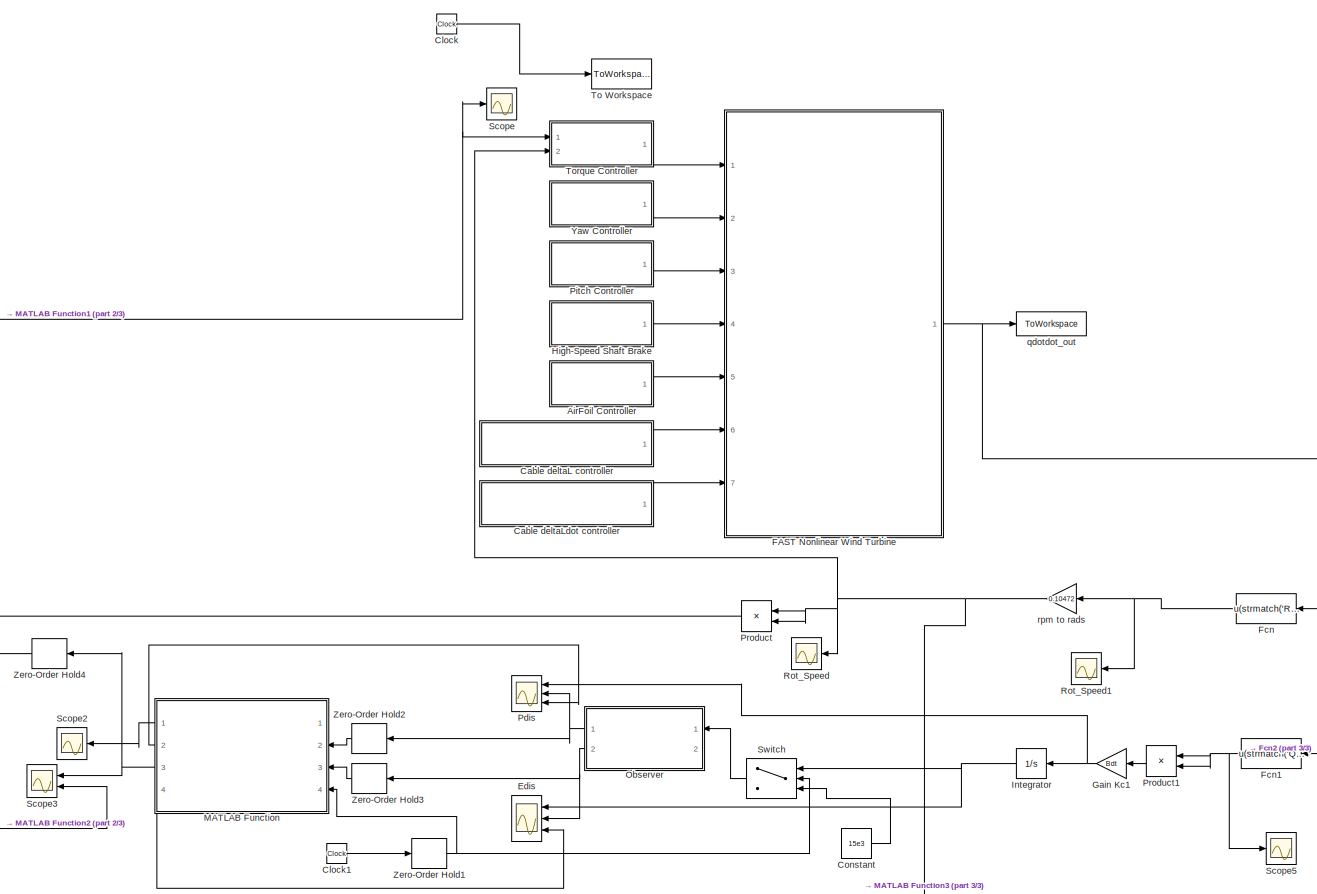
[diagram: root canvas - part 1/3, most of the canvas]
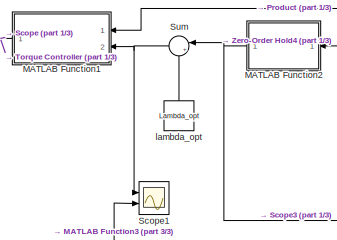
[diagram: root canvas - part 2/3, bottom left region]
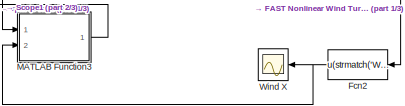
[diagram: root canvas - part 3/3, bottom right region]
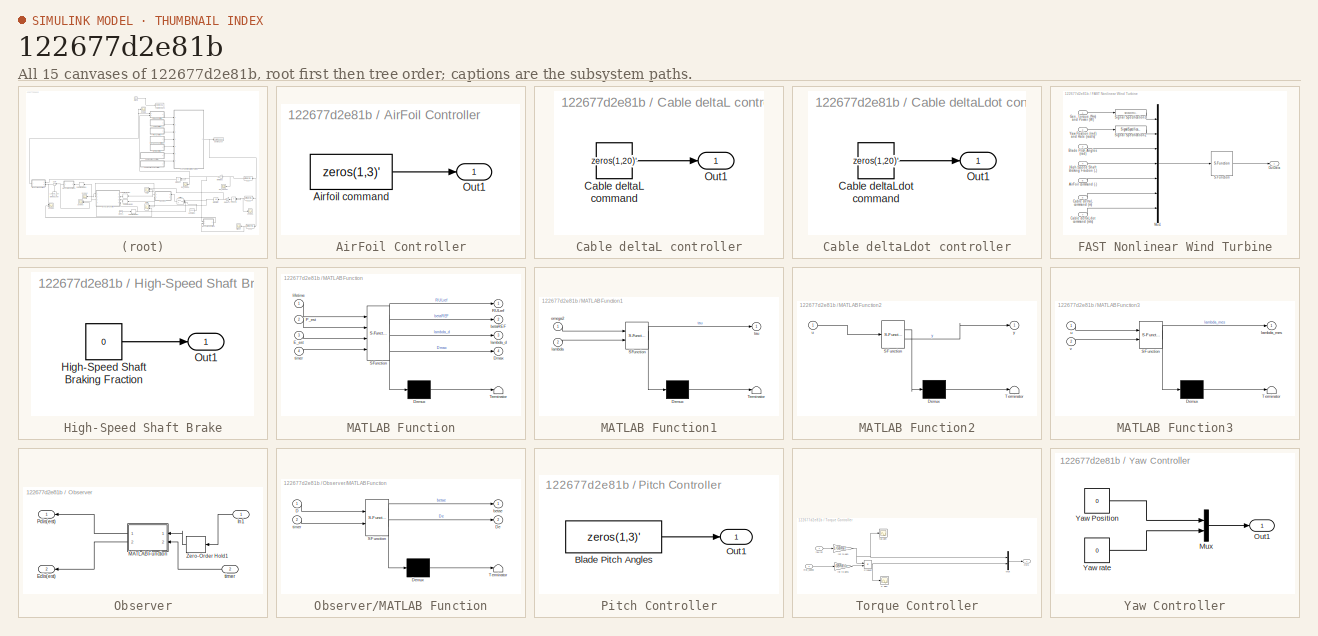
[diagram: thumbnail index - all 15 canvases of the model, root first then tree order]
MODEL slx_122677d2e81b
KIND model
CONFIG AbsTol = auto
CONFIG EnableMultiTasking = on
CONFIG FixedStep = DT
CONFIG MaxStep = DT
CONFIG MinStep = auto
CONFIG RelTol = 1e-3
CONFIG SampleTimeConstraint = Unconstrained
CONFIG SolverName = ode4
CONFIG StartTime = 0.0
CONFIG StopTime = TMax
BLOCK [SubSystem] AirFoil Controller
  Ports = [0, 1]
  RequestExecContextInheritance = off
BLOCK [Constant] AirFoil Controller/Airfoil command
  Value = zeros(1,3)'
BLOCK [Outport] AirFoil Controller/Out1
BLOCK [SubSystem] Cable deltaL controller
  Ports = [0, 1]
  RequestExecContextInheritance = off
BLOCK [Constant] Cable deltaL controller/Cable deltaL command
  Value = zeros(1,20)'
BLOCK [Outport] Cable deltaL controller/Out1
BLOCK [SubSystem] Cable deltaLdot controller
  Ports = [0, 1]
  RequestExecContextInheritance = off
BLOCK [Constant] Cable deltaLdot controller/Cable deltaLdot command
  Value = zeros(1,20)'
BLOCK [Outport] Cable deltaLdot controller/Out1
BLOCK [Clock] Clock
BLOCK [Clock] Clock1
BLOCK [Constant] Constant
  Value = 15e3
BLOCK [Scope] Edis
  Floating = off
  NameLocation = top
  NumInputPorts = 3
  Ports = [3]
  ScopeSpecificationString = Simulink.scopes.TimeScopeBlockCfg('CurrentConfiguration', extmgr.ConfigurationSet(extmgr.Configuration('Core','General UI',true),extmgr.Configuration('Core','Source UI',true),extmgr.Configuration('Sources','WiredSimulink',true,'DataLoggingVariableName','ScopeData2'),extmgr.Configuration('Visuals','Time Domain',true,'SerializedDisplays',{struct('MinYLimReal','15011.5018','MaxYLimReal','15012.31521'...<+1508ch>
BLOCK [SubSystem] FAST Nonlinear Wind Turbine
  Ports = [7, 1]
  RequestExecContextInheritance = off
BLOCK [Inport] FAST Nonlinear Wind Turbine/AirFoil command (-)
  Port = 5
BLOCK [Inport] FAST Nonlinear Wind Turbine/Blade Pitch Angles (rad)
  Port = 3
BLOCK [Inport] FAST Nonlinear Wind Turbine/Cable deltaL command (m)
  Port = 6
BLOCK [Inport] FAST Nonlinear Wind Turbine/Cable deltaLdot command (m//s)
  Port = 7
BLOCK [Inport] FAST Nonlinear Wind Turbine/Gen. Torque (Nm) and Power (W)
BLOCK [Inport] FAST Nonlinear Wind Turbine/High-Speed Shaft Braking Fraction (-)
  Port = 4
BLOCK [Mux] FAST Nonlinear Wind Turbine/Mux1
  DisplayOption = bar
  Inputs = 7
  Ports = [7, 1]
BLOCK [Outport] FAST Nonlinear Wind Turbine/OutData
BLOCK [S-Function] FAST Nonlinear Wind Turbine/S-Function
  EnableBusSupport = off
  FunctionName = FAST_SFunc
  Parameters = FAST_InputFileName, TMax, 0
  Ports = [1, 1]
  SFcnIsStateOwnerBlock = off
  SFunctionDeploymentMode = off
BLOCK [SignalSpecification] FAST Nonlinear Wind Turbine/Signal Specification1
  Dimensions = 2
  OutDataTypeStr = double
  SignalType = real
BLOCK [SignalSpecification] FAST Nonlinear Wind Turbine/Signal Specification2
  Dimensions = 2
  OutDataTypeStr = double
  SignalType = real
BLOCK [Inport] FAST Nonlinear Wind Turbine/Yaw Position (rad) and Rate (rad//s)
  Port = 2
BLOCK [Fcn] Fcn
  Expr = u(strmatch('RotSpeed',OutList))
  NameLocation = top
BLOCK [Fcn] Fcn1
  Expr = u(strmatch('QD_DrTr',OutList))
  NameLocation = top
BLOCK [Fcn] Fcn2
  Expr = u(strmatch('Wind1VelX',OutList))
  NameLocation = top
BLOCK [Gain] Gain Kc1
  Gain = Bdt
BLOCK [SubSystem] High-Speed Shaft Brake
  Ports = [0, 1]
  RequestExecContextInheritance = off
BLOCK [Constant] High-Speed Shaft Brake/High-Speed Shaft Braking Fraction
  Value = 0
BLOCK [Outport] High-Speed Shaft Brake/Out1
BLOCK [Integrator] Integrator
  NameLocation = top
  Ports = [1, 1]
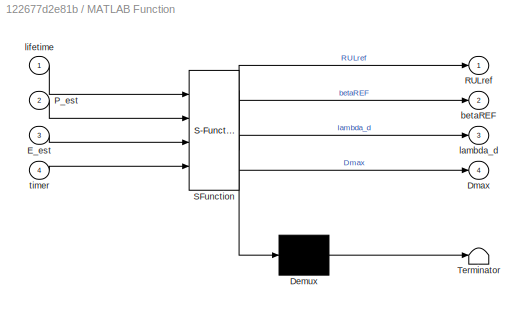
BLOCK [SubSystem] MATLAB Function
  ErrorFcn = Stateflow.Translate.translate
  PermitHierarchicalResolution = ExplicitOnly
  Ports = [4, 4]
  RequestExecContextInheritance = off
  SFBlockType = MATLAB Function
  TreatAsAtomicUnit = on
BLOCK [Demux] MATLAB Function/ Demux 
  Outputs = 1
  Ports = [1, 1]
BLOCK [S-Function] MATLAB Function/ SFunction 
  EnableBusSupport = on
  FunctionName = sf_sfun
  PortCounts = [4 5]
  Ports = [4, 5]
  SFcnIsStateOwnerBlock = off
  SFunctionDeploymentMode = off
  Tag = Stateflow S-Function 3
BLOCK [Terminator] MATLAB Function/ Terminator 
BLOCK [Outport] MATLAB Function/Dmax
  Port = 4
BLOCK [Inport] MATLAB Function/E_est
  Port = 3
BLOCK [Inport] MATLAB Function/P_est
  Port = 2
BLOCK [Outport] MATLAB Function/RULref
BLOCK [Outport] MATLAB Function/betaREF
  Port = 2
BLOCK [Outport] MATLAB Function/lambda_d
  Port = 3
BLOCK [Inport] MATLAB Function/lifetime
BLOCK [Inport] MATLAB Function/timer
  Port = 4
BLOCK [SubSystem] MATLAB Function1
  ErrorFcn = Stateflow.Translate.translate
  NameLocation = top
  PermitHierarchicalResolution = ExplicitOnly
  Ports = [2, 1]
  RequestExecContextInheritance = off
  SFBlockType = MATLAB Function
  TreatAsAtomicUnit = on
BLOCK [Demux] MATLAB Function1/ Demux 
  Outputs = 1
  Ports = [1, 1]
BLOCK [S-Function] MATLAB Function1/ SFunction 
  EnableBusSupport = on
  FunctionName = sf_sfun
  PortCounts = [2 2]
  Ports = [2, 2]
  SFcnIsStateOwnerBlock = off
  SFunctionDeploymentMode = off
  Tag = Stateflow S-Function 1
BLOCK [Terminator] MATLAB Function1/ Terminator 
BLOCK [Inport] MATLAB Function1/lambda
  Port = 2
BLOCK [Inport] MATLAB Function1/omega2
BLOCK [Outport] MATLAB Function1/tau
BLOCK [SubSystem] MATLAB Function2
  ErrorFcn = Stateflow.Translate.translate
  PermitHierarchicalResolution = ExplicitOnly
  Ports = [1, 1]
  RequestExecContextInheritance = off
  SFBlockType = MATLAB Function
  TreatAsAtomicUnit = on
BLOCK [Demux] MATLAB Function2/ Demux 
  Outputs = 1
  Ports = [1, 1]
BLOCK [S-Function] MATLAB Function2/ SFunction 
  EnableBusSupport = on
  FunctionName = sf_sfun
  PortCounts = [1 2]
  Ports = [1, 2]
  SFcnIsStateOwnerBlock = off
  SFunctionDeploymentMode = off
  Tag = Stateflow S-Function 4
BLOCK [Terminator] MATLAB Function2/ Terminator 
BLOCK [Inport] MATLAB Function2/u
BLOCK [Outport] MATLAB Function2/y
BLOCK [SubSystem] MATLAB Function3
  ErrorFcn = Stateflow.Translate.translate
  PermitHierarchicalResolution = ExplicitOnly
  Ports = [2, 1]
  RequestExecContextInheritance = off
  SFBlockType = MATLAB Function
  TreatAsAtomicUnit = on
BLOCK [Demux] MATLAB Function3/ Demux 
  Outputs = 1
  Ports = [1, 1]
BLOCK [S-Function] MATLAB Function3/ SFunction 
  EnableBusSupport = on
  FunctionName = sf_sfun
  PortCounts = [2 2]
  Ports = [2, 2]
  SFcnIsStateOwnerBlock = off
  SFunctionDeploymentMode = off
  Tag = Stateflow S-Function 5
BLOCK [Terminator] MATLAB Function3/ Terminator 
BLOCK [Outport] MATLAB Function3/lambda_mes
BLOCK [Inport] MATLAB Function3/u
BLOCK [Inport] MATLAB Function3/v
  Port = 2
BLOCK [SubSystem] Observer
  PortSchema = {"entries":[{"content":{"sides":[{"content":{"connectorIds":["In1"]},"type":"ConnectorPlacement.EquallySpacedRectSide","uuid":"45431176-5fec-4c34-81d0-337d69ca9793"},{"content":{"connectorIds":["Out1","Out2"],"side":"RIGHT"},"type":"ConnectorPlacement.EquallySpacedRectSide","uuid":"e3405e5b-b033-438f-b194-16e352d87631"},{"content":{"connectorIds":[],"side":"TOP"},"type":"ConnectorPlacement.Equally...<+396ch>
  Ports = [2, 2]
  RequestExecContextInheritance = off
BLOCK [Outport] Observer/Edis(est)
  Port = 2
BLOCK [Inport] Observer/In1
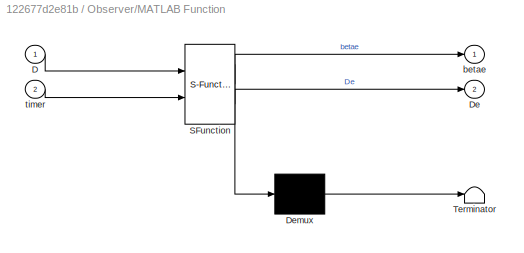
BLOCK [SubSystem] Observer/MATLAB Function
  ErrorFcn = Stateflow.Translate.translate
  NameLocation = top
  PermitHierarchicalResolution = ExplicitOnly
  Ports = [2, 2]
  RequestExecContextInheritance = off
  SFBlockType = MATLAB Function
  TreatAsAtomicUnit = on
BLOCK [Demux] Observer/MATLAB Function/ Demux 
  Outputs = 1
  Ports = [1, 1]
BLOCK [S-Function] Observer/MATLAB Function/ SFunction 
  EnableBusSupport = on
  FunctionName = sf_sfun
  PortCounts = [2 3]
  Ports = [2, 3]
  SFcnIsStateOwnerBlock = off
  SFunctionDeploymentMode = off
  Tag = Stateflow S-Function 2
BLOCK [Terminator] Observer/MATLAB Function/ Terminator 
BLOCK [Inport] Observer/MATLAB Function/D
BLOCK [Outport] Observer/MATLAB Function/De
  Port = 2
BLOCK [Outport] Observer/MATLAB Function/betae
BLOCK [Inport] Observer/MATLAB Function/timer
  Port = 2
BLOCK [Outport] Observer/Pdis(est)
BLOCK [ZeroOrderHold] Observer/Zero-Order Hold1
BLOCK [Inport] Observer/timer
  Port = 2
BLOCK [Scope] Pdis
  Floating = off
  NameLocation = top
  NumInputPorts = 3
  Ports = [3]
  ScopeSpecificationString = Simulink.scopes.TimeScopeBlockCfg('CurrentConfiguration', extmgr.ConfigurationSet(extmgr.Configuration('Core','General UI',true),extmgr.Configuration('Core','Source UI',true),extmgr.Configuration('Sources','WiredSimulink',true,'DataLoggingVariableName','ScopeData1'),extmgr.Configuration('Visuals','Time Domain',true,'SerializedDisplays',{struct('MinYLimReal','-551.0503','MaxYLimReal','729.4146','YL...<+1519ch>
BLOCK [SubSystem] Pitch Controller
  Ports = [0, 1]
  RequestExecContextInheritance = off
BLOCK [Constant] Pitch Controller/Blade Pitch Angles
  Value = zeros(1,3)'
BLOCK [Outport] Pitch Controller/Out1
BLOCK [Product] Product
  Ports = [2, 1]
BLOCK [Product] Product1
  Ports = [2, 1]
BLOCK [Scope] Rot_Speed
  Floating = off
  NumInputPorts = 1
  Ports = [1]
  ScopeSpecificationString = Simulink.scopes.TimeScopeBlockCfg('CurrentConfiguration', extmgr.ConfigurationSet(extmgr.Configuration('Core','General UI',true),extmgr.Configuration('Core','Source UI',true),extmgr.Configuration('Sources','WiredSimulink',true,'DataLoggingVariableName','ScopeData2'),extmgr.Configuration('Visuals','Time Domain',true,'SerializedDisplays',{struct('MinYLimReal','1.1694','MaxYLimReal','2.53539','YLabel...<+1439ch>
BLOCK [Scope] Rot_Speed1
  Floating = off
  NumInputPorts = 1
  Ports = [1]
  ScopeSpecificationString = Simulink.scopes.TimeScopeBlockCfg('CurrentConfiguration', extmgr.ConfigurationSet(extmgr.Configuration('Core','General UI',true),extmgr.Configuration('Core','Source UI',true),extmgr.Configuration('Sources','WiredSimulink',true,'DataLoggingVariableName','ScopeData1'),extmgr.Configuration('Visuals','Time Domain',true,'SerializedDisplays',{struct('MinYLimReal','9.41275','MaxYLimReal','21.17791','YLab...<+1465ch>
BLOCK [Scope] Scope
  Floating = off
  NumInputPorts = 1
  Ports = [1]
  ScopeSpecificationString = Simulink.scopes.TimeScopeBlockCfg('CurrentConfiguration', extmgr.ConfigurationSet(extmgr.Configuration('Core','General UI',true),extmgr.Configuration('Core','Source UI',true),extmgr.Configuration('Sources','WiredSimulink',true),extmgr.Configuration('Visuals','Time Domain',true,'SerializedDisplays',{struct('MinYLimReal','697778.40911','MaxYLimReal','1166140.03491','YLabelReal','','MinYLimMag','6977...<+1440ch>
BLOCK [Scope] Scope1
  Floating = off
  NumInputPorts = 2
  Ports = [2]
  ScopeSpecificationString = Simulink.scopes.TimeScopeBlockCfg('CurrentConfiguration', extmgr.ConfigurationSet(extmgr.Configuration('Core','General UI',true),extmgr.Configuration('Core','Source UI',true),extmgr.Configuration('Sources','WiredSimulink',true,'DataLoggingVariableName','ScopeData1'),extmgr.Configuration('Visuals','Time Domain',true,'SerializedDisplays',{struct('MinYLimReal','3.89319','MaxYLimReal','11.17141','YLab...<+1516ch>
BLOCK [Scope] Scope2
  Floating = off
  NumInputPorts = 1
  Ports = [1]
  ScopeSpecificationString = Simulink.scopes.TimeScopeBlockCfg('CurrentConfiguration', extmgr.ConfigurationSet(extmgr.Configuration('Core','General UI',true),extmgr.Configuration('Core','Source UI',true),extmgr.Configuration('Sources','WiredSimulink',true,'DataLoggingVariableName','ScopeData4'),extmgr.Configuration('Visuals','Time Domain',true,'SerializedDisplays',{struct('MinYLimReal','193.8575','MaxYLimReal','200.6825','YLa...<+1412ch>
BLOCK [Scope] Scope3
  Floating = off
  NumInputPorts = 2
  Ports = [2]
  ScopeSpecificationString = Simulink.scopes.TimeScopeBlockCfg('CurrentConfiguration', extmgr.ConfigurationSet(extmgr.Configuration('Core','General UI',true),extmgr.Configuration('Core','Source UI',true),extmgr.Configuration('Sources','WiredSimulink',true,'DataLoggingVariableName','ScopeData5'),extmgr.Configuration('Visuals','Time Domain',true,'SerializedDisplays',{struct('MinYLimReal','-1.58764','MaxYLimReal','0.1764','YLabe...<+1497ch>
BLOCK [Scope] Scope5
  Floating = off
  NumInputPorts = 1
  Ports = [1]
  ScopeSpecificationString = Simulink.scopes.TimeScopeBlockCfg('CurrentConfiguration', extmgr.ConfigurationSet(extmgr.Configuration('Core','General UI',true),extmgr.Configuration('Core','Source UI',true),extmgr.Configuration('Sources','WiredSimulink',true,'DataLoggingVariableName','ScopeData2'),extmgr.Configuration('Visuals','Time Domain',true,'SerializedDisplays',{struct('MinYLimReal','-0.06162','MaxYLimReal','0.04132','YLab...<+1434ch>
BLOCK [Sum] Sum
  Inputs = |++
  Ports = [2, 1]
BLOCK [Switch] Switch
  Criteria = u2 > Threshold
  InputSameDT = off
  SaturateOnIntegerOverflow = off
  Threshold = 20
BLOCK [ToWorkspace] To Workspace
  MaxDataPoints = inf
  Ports = [1]
  SampleTime = -1
  VariableName = Time
BLOCK [SubSystem] Torque Controller
  Ports = [2, 1]
  RequestExecContextInheritance = off
BLOCK [Mux] Torque Controller/Mux
  DisplayOption = bar
  Inputs = 2
  Ports = [2, 1]
BLOCK [Outport] Torque Controller/Out1
BLOCK [Scope] Torque Controller/P gen
  Floating = off
  NumInputPorts = 1
  Ports = [1]
  ScopeSpecificationString = Simulink.scopes.TimeScopeBlockCfg('CurrentConfiguration', extmgr.ConfigurationSet(extmgr.Configuration('Core','General UI',true),extmgr.Configuration('Core','Source UI',true),extmgr.Configuration('Sources','WiredSimulink',true,'DataLoggingVariableName','ScopeData1'),extmgr.Configuration('Visuals','Time Domain',true,'SerializedDisplays',{struct('MinYLimReal','498649.38119','MaxYLimReal','2643127.71...<+1509ch>
BLOCK [Product] Torque Controller/Product
  Ports = [2, 1]
BLOCK [Inport] Torque Controller/Rot_speed
  Port = 2
BLOCK [Gain] Torque Controller/rot to gen
  Gain = 1/GBRatio
BLOCK [Gain] Torque Controller/rot to gen1
  Gain = GBRatio
BLOCK [Scope] Torque Controller/tau gen
  Floating = off
  NumInputPorts = 1
  Ports = [1]
  ScopeSpecificationString = Simulink.scopes.TimeScopeBlockCfg('CurrentConfiguration', extmgr.ConfigurationSet(extmgr.Configuration('Core','General UI',true),extmgr.Configuration('Core','Source UI',true),extmgr.Configuration('Sources','WiredSimulink',true,'DataLoggingVariableName','ScopeData2'),extmgr.Configuration('Visuals','Time Domain',true,'SerializedDisplays',{struct('MinYLimReal','8839.16645','MaxYLimReal','8872.88692',...<+1465ch>
BLOCK [Inport] Torque Controller/tau rot
BLOCK [Scope] Wind X
  Floating = off
  NameLocation = top
  NumInputPorts = 1
  Ports = [1]
  ScopeSpecificationString = Simulink.scopes.TimeScopeBlockCfg('CurrentConfiguration', extmgr.ConfigurationSet(extmgr.Configuration('Core','General UI',true),extmgr.Configuration('Core','Source UI',true),extmgr.Configuration('Sources','WiredSimulink',true,'DataLoggingVariableName','ScopeData1'),extmgr.Configuration('Visuals','Time Domain',true,'SerializedDisplays',{struct('MinYLimReal','4.47425','MaxYLimReal','16.07172','YLab...<+1462ch>
BLOCK [SubSystem] Yaw Controller
  Ports = [0, 1]
  RequestExecContextInheritance = off
BLOCK [Mux] Yaw Controller/Mux
  DisplayOption = bar
  Inputs = 2
  Ports = [2, 1]
BLOCK [Outport] Yaw Controller/Out1
BLOCK [Constant] Yaw Controller/Yaw Position
  Value = 0
BLOCK [Constant] Yaw Controller/Yaw rate
  Value = 0
BLOCK [ZeroOrderHold] Zero-Order Hold1
BLOCK [ZeroOrderHold] Zero-Order Hold2
BLOCK [ZeroOrderHold] Zero-Order Hold3
BLOCK [ZeroOrderHold] Zero-Order Hold4
  SampleTime = 0.005
BLOCK [Constant] lambda_opt	
  NameLocation = right
  Value = Lambda_opt
BLOCK [ToWorkspace] qdotdot_out
  MaxDataPoints = inf
  Ports = [1]
  SampleTime = -1
  VariableName = OutData
BLOCK [Gain] rpm to rads
  Gain = 0.10472
LINE AirFoil Controller/Airfoil command:1 -> AirFoil Controller/Out1:1
LINE AirFoil Controller:1 -> FAST Nonlinear Wind Turbine:5
LINE Cable deltaL controller/Cable deltaL command:1 -> Cable deltaL controller/Out1:1
LINE Cable deltaL controller:1 -> FAST Nonlinear Wind Turbine:6
LINE Cable deltaLdot controller/Cable deltaLdot command:1 -> Cable deltaLdot controller/Out1:1
LINE Cable deltaLdot controller:1 -> FAST Nonlinear Wind Turbine:7
LINE Clock1:1 -> Zero-Order Hold1:1
LINE Clock:1 -> To Workspace:1
LINE Constant:1 -> Switch:3
LINE FAST Nonlinear Wind Turbine/AirFoil command (-):1 -> FAST Nonlinear Wind Turbine/Mux1:5
LINE FAST Nonlinear Wind Turbine/Blade Pitch Angles (rad):1 -> FAST Nonlinear Wind Turbine/Mux1:3
LINE FAST Nonlinear Wind Turbine/Cable deltaL command (m):1 -> FAST Nonlinear Wind Turbine/Mux1:6
LINE FAST Nonlinear Wind Turbine/Cable deltaLdot command (m//s):1 -> FAST Nonlinear Wind Turbine/Mux1:7
LINE FAST Nonlinear Wind Turbine/Gen. Torque (Nm) and Power (W):1 -> FAST Nonlinear Wind Turbine/Signal Specification1:1
LINE FAST Nonlinear Wind Turbine/High-Speed Shaft Braking Fraction (-):1 -> FAST Nonlinear Wind Turbine/Mux1:4
LINE FAST Nonlinear Wind Turbine/Mux1:1 -> FAST Nonlinear Wind Turbine/S-Function:1
LINE FAST Nonlinear Wind Turbine/S-Function:1 -> FAST Nonlinear Wind Turbine/OutData:1
LINE FAST Nonlinear Wind Turbine/Signal Specification1:1 -> FAST Nonlinear Wind Turbine/Mux1:1
LINE FAST Nonlinear Wind Turbine/Signal Specification2:1 -> FAST Nonlinear Wind Turbine/Mux1:2
LINE FAST Nonlinear Wind Turbine/Yaw Position (rad) and Rate (rad//s):1 -> FAST Nonlinear Wind Turbine/Signal Specification2:1
NET FAST Nonlinear Wind Turbine:1 -> Fcn1:1, Fcn2:1, Fcn:1, qdotdot_out:1
NET Fcn1:1 -> Product1:1, Product1:2, Scope5:1
NET Fcn2:1 -> MATLAB Function3:2, Wind X:1
NET Fcn:1 -> Rot_Speed1:1, rpm to rads:1
NET Gain Kc1:1 -> Integrator:1, Pdis:1
LINE High-Speed Shaft Brake/High-Speed Shaft Braking Fraction:1 -> High-Speed Shaft Brake/Out1:1
LINE High-Speed Shaft Brake:1 -> FAST Nonlinear Wind Turbine:4
NET Integrator:1 -> Edis:1, Switch:1
NET MATLAB Function1:1 -> Scope:1, Torque Controller:1
NET MATLAB Function2:1 -> Scope3:2, Sum:1
LINE MATLAB Function3:1 -> Scope1:2
LINE MATLAB Function:1 -> Scope2:1
LINE MATLAB Function:2 -> Pdis:3
NET MATLAB Function:3 -> Scope3:1, Zero-Order Hold4:1
LINE MATLAB Function:4 -> Edis:3
LINE Observer/In1:1 -> Observer/Zero-Order Hold1:1
LINE Observer/MATLAB Function:1 -> Observer/Pdis(est):1
LINE Observer/MATLAB Function:2 -> Observer/Edis(est):1
LINE Observer/Zero-Order Hold1:1 -> Observer/MATLAB Function:1
LINE Observer/timer:1 -> Observer/MATLAB Function:2
NET Observer:1 -> Pdis:2, Zero-Order Hold2:1
NET Observer:2 -> Edis:2, Zero-Order Hold3:1
LINE Pitch Controller/Blade Pitch Angles:1 -> Pitch Controller/Out1:1
LINE Pitch Controller:1 -> FAST Nonlinear Wind Turbine:3
LINE Product1:1 -> Gain Kc1:1
LINE Product:1 -> MATLAB Function1:1
NET Sum:1 -> MATLAB Function1:2, Scope1:1
LINE Switch:1 -> Observer:1
LINE Torque Controller/Mux:1 -> Torque Controller/Out1:1
NET Torque Controller/Product:1 -> Torque Controller/Mux:2, Torque Controller/P gen:1
LINE Torque Controller/Rot_speed:1 -> Torque Controller/rot to gen1:1
LINE Torque Controller/rot to gen1:1 -> Torque Controller/Product:2
NET Torque Controller/rot to gen:1 -> Torque Controller/Mux:1, Torque Controller/Product:1, Torque Controller/tau gen:1
LINE Torque Controller/tau rot:1 -> Torque Controller/rot to gen:1
LINE Torque Controller:1 -> FAST Nonlinear Wind Turbine:1
LINE Yaw Controller/Mux:1 -> Yaw Controller/Out1:1
LINE Yaw Controller/Yaw Position:1 -> Yaw Controller/Mux:1
LINE Yaw Controller/Yaw rate:1 -> Yaw Controller/Mux:2
LINE Yaw Controller:1 -> FAST Nonlinear Wind Turbine:2
NET Zero-Order Hold1:1 -> MATLAB Function:4, Switch:2
LINE Zero-Order Hold2:1 -> MATLAB Function:2
LINE Zero-Order Hold3:1 -> MATLAB Function:3
LINE Zero-Order Hold4:1 -> MATLAB Function2:1
LINE lambda_opt	:1 -> Sum:2
NET rpm to rads:1 -> MATLAB Function3:1, Product:1, Product:2, Rot_Speed:1, Torque Controller:2
note: NET lines group one-source signal fan-out (src -> all destinations, sorted); 1:1 wires keep LINE
CHART MATLAB Function1 states=1 transitions=1
  STATE_LABEL 'eML_blk_kernel()'
  STATE_LABEL 'SCRIPT:\nfunction tau = fcn(omega2,lambda)\nrho_air=1.225;\nR_r=70/2;\nA=pi*R_r*R_r;\nCpmax=0.465813666582108;\nk=0.5*rho_air*A*R_r*R_r*R_r*Cpmax/(lambda*lambda*lambda);\ntau = k*omega2;\n'
CHART Observer/MATLAB Function states=1 transitions=1
  STATE_LABEL 'eML_blk_kernel()'
  STATE_LABEL 'SCRIPT:\nfunction [betae,De] = Observer(D,timer)\npersistent x P\n\n%%%%%%%%%%%%%%%%%%%%%%%%%%%%\nif isempty(x)   \n    % initial deterioration: \n    x=[15e3;1];\nend\nif isempty(P)    \n    P=[100 0;\n       0 10];\nend\n\nTs=1; c=0; \nQ=[10 0; 0 2.5]; %0*(0.05/100)^2];\nR=0.1;\n%%%%%%%%%%%%%%%%%%%%%%%%%%%%\n\n    De = x(1); %estimated deterioration\n    betae = x(2); %estimated beta\n\n    noise = 0;%0.1*randn(1);\n ...<+523ch>'
CHART MATLAB Function states=1 transitions=1
  STATE_LABEL 'eML_blk_kernel()'
  STATE_LABEL 'SCRIPT:\nfunction [RULref,betaREF,lambda_d,Dmax]  = Reference_Governor(lifetime,P_est,E_est,timer)\n\npersistent z lambda_d_old\n\nif isempty(z)   \n    % initial deterioration: \n    lambda_d_old = 0;\n    \n    K1=0.4175;\n    K2=0.0655;\n\n    z=(lambda_d_old+K1*lambda_d_old)/-K2;\n\n    \nend\nK1=0.4175;\nK2=0.0655;\n\n\nTs=1;\n\n%RUL reference generation:\nLifetime = 2000;\nRULref=-1*timer+Lifetime;\n\n%References for...<+736ch>'
CHART MATLAB Function2 states=1 transitions=1
  STATE_LABEL 'eML_blk_kernel()'
  STATE_LABEL 'SCRIPT:\nfunction y = my_average(u) %# codegen\npersistent i buf bufSum;\nif isempty(buf)\n    buf = zeros(1,200);\n    bufSum = 0;\n    i = 1;\nend\nbufSum = bufSum - buf(i);\nbuf(i) = u;\nbufSum = bufSum + u;\ni = i + 1;\nif i > numel(buf)\n    i = 1;\nend\ny = bufSum / numel(buf);'
CHART MATLAB Function3 states=1 transitions=1
  STATE_LABEL 'eML_blk_kernel()'
  STATE_LABEL 'SCRIPT:\nfunction lambda_mes = fcn(u,v)\nlambda_mes=u*35/v;\n\n'
CHART  states=0 transitions=0
CHART  states=0 transitions=0
CHART  states=0 transitions=0
CHART  states=0 transitions=0
CHART  states=0 transitions=0
